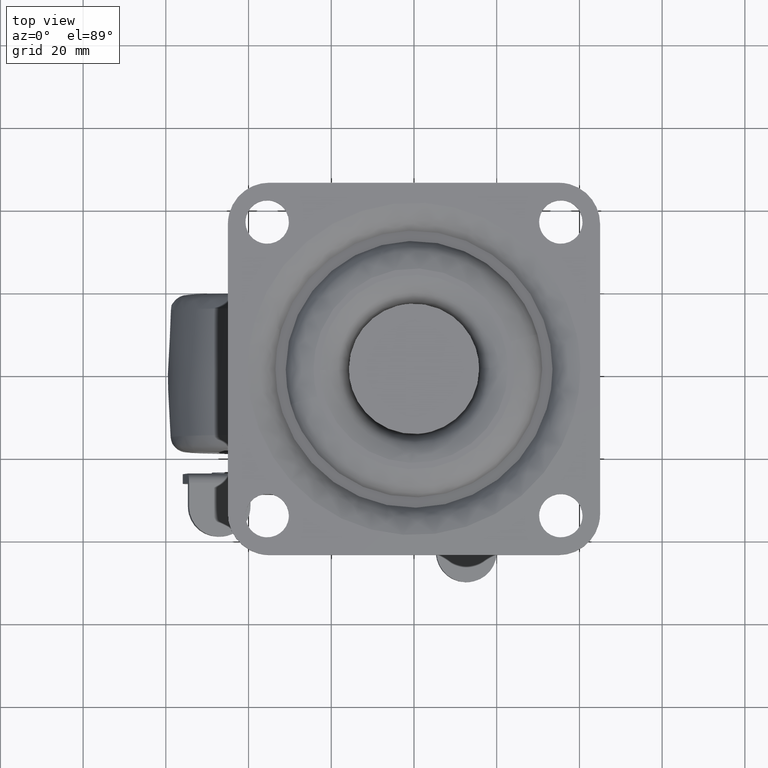
[diagram: clean part render]
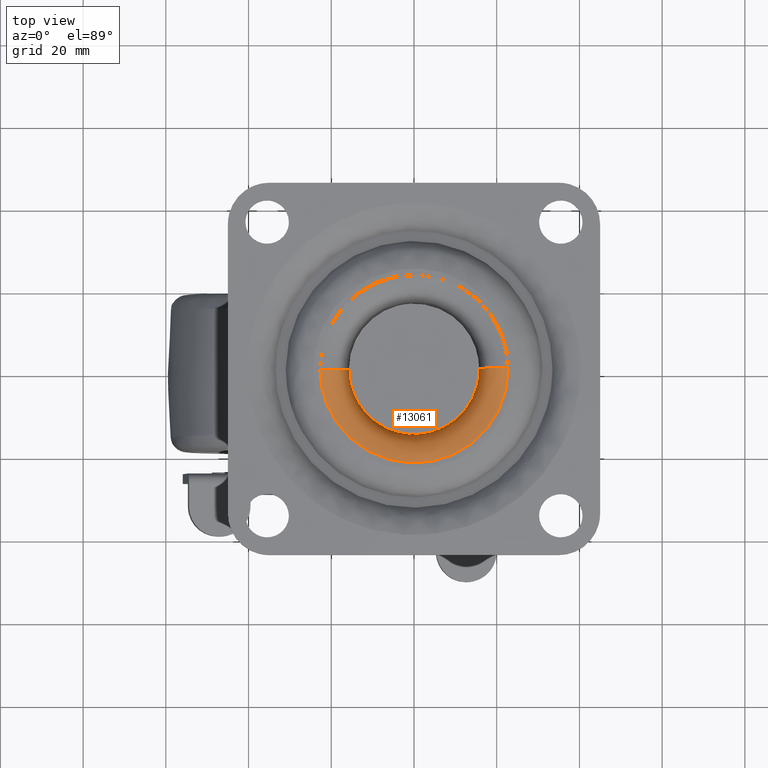
[diagram: same view with one face highlighted and labeled with its STEP entity id]
A machine part, top view. The second image highlights one B-rep face of the part: STEP entity #13061.
In plain terms, the highlighted face is a freeform B-spline surface patch.
Its self-contained STEP definition (entity closure, byte-faithful):
#12864=CARTESIAN_POINT('',(22.750000000000000,0.0,0.0));
#12865=VERTEX_POINT('',#12864);
#12866=CARTESIAN_POINT('',(-22.748203754541908,-0.285877407772717,-1.633897E-015));
#12867=VERTEX_POINT('',#12866);
#12868=CARTESIAN_POINT('',(22.750000000000000,0.0,0.0));
#12869=CARTESIAN_POINT('',(22.750270416747998,-1.575734164672007,-3.458239E-019));
#12870=CARTESIAN_POINT('',(22.479199530850650,-4.170904820728083,-1.066548E-017));
#12871=CARTESIAN_POINT('',(21.482723088850872,-7.702532078662542,-4.724562E-017));
#12872=CARTESIAN_POINT('',(20.346477157180932,-10.298795245712091,-8.863380E-017));
#12873=CARTESIAN_POINT('',(18.911498167755308,-12.738489382054640,-1.407141E-016));
#12874=CARTESIAN_POINT('',(17.453956726108601,-14.664513020805209,-1.934887E-016));
#12875=CARTESIAN_POINT('',(15.636601802409910,-16.585021327774371,-2.591829E-016));
#12876=CARTESIAN_POINT('',(13.799010965172270,-18.151854674885961,-3.255240E-016));
#12877=CARTESIAN_POINT('',(11.446613613463860,-19.726651626004529,-4.103535E-016));
#12878=CARTESIAN_POINT('',(8.958421236068434,-20.983375616975881,-4.999876E-016));
#12879=CARTESIAN_POINT('',(6.328574817070607,-21.902662413918598,-5.946323E-016));
#12880=CARTESIAN_POINT('',(4.020545473658382,-22.426589559131990,-6.776315E-016));
#12881=CARTESIAN_POINT('',(1.214298679167148,-22.789365570482691,-7.784852E-016));
#12882=CARTESIAN_POINT('',(-1.810680542593149,-22.771381257506341,-8.871076E-016));
#12883=CARTESIAN_POINT('',(-4.973201464255172,-22.255115295468340,-1.000557E-015));
#12884=CARTESIAN_POINT('',(-7.738114653728506,-21.457224156025021,-1.099664E-015));
#12885=CARTESIAN_POINT('',(-10.042726807674830,-20.465878250463319,-1.182199E-015));
#12886=CARTESIAN_POINT('',(-12.341918562225681,-19.160865805055849,-1.264468E-015));
#12887=CARTESIAN_POINT('',(-14.760750585859430,-17.433696552933750,-1.350938E-015));
#12888=CARTESIAN_POINT('',(-17.451422371831342,-14.793425168511030,-1.446964E-015));
#12889=CARTESIAN_POINT('',(-19.802548163149151,-11.439954332620530,-1.530636E-015));
#12890=CARTESIAN_POINT('',(-21.328930903685681,-8.148545843134846,-1.584705E-015));
#12891=CARTESIAN_POINT('',(-22.421943358183249,-4.452983039676621,-1.623121E-015));
#12892=CARTESIAN_POINT('',(-22.728124988938148,-1.907843913697960,-1.633542E-015));
#12893=CARTESIAN_POINT('',(-22.748203754541908,-0.285877407772717,-1.633897E-015));
#12894=B_SPLINE_CURVE_WITH_KNOTS('',3,(#12868,#12869,#12870,#12871,#12872,#12873,#12874,#12875,#12876,#12877,#12878,#12879,#12880,#12881,#12882,#12883,#12884,#12885,#12886,#12887,#12888,#12889,#12890,#12891,#12892,#12893),.UNSPECIFIED.,.F.,.U.,(4,1,1,1,1,1,1,1,1,1,1,1,1,1,1,1,1,1,1,1,1,1,1,4),(0.000000140173512,4.727133865024172,7.785886242905598,10.983691535332010,13.208235100820369,16.266991205681141,18.213471860141478,21.133197071198861,23.496794750008011,26.694593296585229,29.475260091006749,31.838869345906229,33.785291909284197,37.956249056737008,40.876022186023690,43.378624595220522,46.576422134374667,48.383858314212603,51.303574749317193,55.474613113340531,59.645659391321637,63.538630670210267,66.319279640690155,71.185458714004653),.UNSPECIFIED.);
#12895=EDGE_CURVE('',#12865,#12867,#12894,.T.);
#12912=CARTESIAN_POINT('',(22.748203754541901,0.285877407772721,-1.633897E-015));
#12913=VERTEX_POINT('',#12912);
#12943=CARTESIAN_POINT('',(22.748203754541898,0.285877407772721,-1.633897E-015));
#12944=CARTESIAN_POINT('',(22.749999999455305,0.142944347028743,-8.169484E-016));
#12945=CARTESIAN_POINT('',(22.750000000000000,0.0,0.0));
#12953=(BOUNDED_CURVE()B_SPLINE_CURVE(2,(#12943,#12944,#12945),.UNSPECIFIED.,.F.,.U.)B_SPLINE_CURVE_WITH_KNOTS((3,3),(0.497784295918326,0.500000000000000),.UNSPECIFIED.)CURVE()GEOMETRIC_REPRESENTATION_ITEM()RATIONAL_B_SPLINE_CURVE((0.994854295636181,0.997404141198321,1.0))REPRESENTATION_ITEM(''));
#12954=EDGE_CURVE('',#12913,#12865,#12953,.T.);
#12959=CARTESIAN_POINT('',(15.765699549901592,0.198128052691167,-7.486759763792726));
#12960=CARTESIAN_POINT('',(15.963827602592762,-15.567571497210434,-7.486759763792727));
#12961=CARTESIAN_POINT('',(0.198128052691168,-15.765699549901592,-7.486759763792726));
#12962=CARTESIAN_POINT('',(-15.567571497210434,-15.963827602592762,-7.486759763792727));
#12963=CARTESIAN_POINT('',(-15.765699549901592,-0.198128052691169,-7.486759763792726));
#12964=CARTESIAN_POINT('',(15.206039294803777,0.191094784287174,0.542760218124275));
#12965=CARTESIAN_POINT('',(15.397134079090954,-15.014944510516601,0.542760218124274));
#12966=CARTESIAN_POINT('',(0.191094784287175,-15.206039294803777,0.542760218124275));
#12967=CARTESIAN_POINT('',(-15.014944510516601,-15.397134079090954,0.542760218124274));
#12968=CARTESIAN_POINT('',(-15.206039294803777,-0.191094784287176,0.542760218124275));
#12969=CARTESIAN_POINT('',(23.234925283797903,0.291994052425816,-0.016944455277657));
#12970=CARTESIAN_POINT('',(23.526919336223710,-22.942931231372082,-0.016944455277657));
#12971=CARTESIAN_POINT('',(0.291994052425818,-23.234925283797903,-0.016944455277657));
#12972=CARTESIAN_POINT('',(-22.942931231372082,-23.526919336223710,-0.016944455277657));
#12973=CARTESIAN_POINT('',(-23.234925283797903,-0.291994052425819,-0.016944455277657));
#12981=(BOUNDED_SURFACE()B_SPLINE_SURFACE(2,2,((#12959,#12964,#12969),(#12960,#12965,#12970),(#12961,#12966,#12971),(#12962,#12967,#12972),(#12963,#12968,#12973)),.UNSPECIFIED.,.F.,.F.,.U.)B_SPLINE_SURFACE_WITH_KNOTS((3,2,3),(3,3),(0.0,38.499924485289263,76.999848970578512),(0.0,12.756617619637810),.UNSPECIFIED.)GEOMETRIC_REPRESENTATION_ITEM()RATIONAL_B_SPLINE_SURFACE(((0.910479795090997,0.597479572841838,0.910479806786608),(0.643806437242182,0.422481857576905,0.643806445512228),(0.910479795090997,0.597479572841838,0.910479806786608),(0.643806437242182,0.422481857576905,0.643806445512228),(0.910479795090997,0.597479572841838,0.910479806786608)))REPRESENTATION_ITEM('')SURFACE());
#12982=CARTESIAN_POINT('',(15.750000000000000,0.0,-7.0));
#12983=VERTEX_POINT('',#12982);
#12984=CARTESIAN_POINT('',(15.748756446210090,0.197915128163612,-6.999999999266153));
#12985=VERTEX_POINT('',#12984);
#12986=CARTESIAN_POINT('',(15.750000000000000,0.0,-7.0));
#12987=CARTESIAN_POINT('',(15.750000000000004,0.098961470872668,-6.999999999633077));
#12988=CARTESIAN_POINT('',(15.748756446210090,0.197915128163612,-6.999999999266153));
#12996=(BOUNDED_CURVE()B_SPLINE_CURVE(2,(#12986,#12987,#12988),.UNSPECIFIED.,.F.,.U.)B_SPLINE_CURVE_WITH_KNOTS((3,3),(0.500000000000000,0.502215704078281),.UNSPECIFIED.)CURVE()GEOMETRIC_REPRESENTATION_ITEM()RATIONAL_B_SPLINE_CURVE((1.0,0.997404141202297,0.994854295643992))REPRESENTATION_ITEM(''));
#12997=EDGE_CURVE('',#12983,#12985,#12996,.T.);
#12998=ORIENTED_EDGE('',*,*,#12997,.F.);
#12999=CARTESIAN_POINT('',(-1.235708689504346,-15.701449743071290,-6.999999999605862));
#13000=VERTEX_POINT('',#12999);
#13001=CARTESIAN_POINT('',(-1.235708689504346,-15.701449743071279,-6.999999999605862));
#13002=CARTESIAN_POINT('',(-0.618808100060724,-15.749999999984770,-6.999999999620156));
#13003=CARTESIAN_POINT('',(1.181138E-012,-15.749999999985080,-6.999999999634496));
#13004=CARTESIAN_POINT('',(15.750000000000563,-15.749999999992825,-6.999999999999484));
#13005=CARTESIAN_POINT('',(15.750000000000000,0.0,-7.0));
#13013=(BOUNDED_CURVE()B_SPLINE_CURVE(2,(#13001,#13002,#13003,#13004,#13005),.UNSPECIFIED.,.F.,.U.)B_SPLINE_CURVE_WITH_KNOTS((3,2,3),(0.236331541568003,0.250000000000000,0.500000000000000),.UNSPECIFIED.)CURVE()GEOMETRIC_REPRESENTATION_ITEM()RATIONAL_B_SPLINE_CURVE((0.969723858985816,0.983986404854538,1.0,0.707106781186547,1.0))REPRESENTATION_ITEM(''));
#13014=EDGE_CURVE('',#13000,#12983,#13013,.T.);
#13015=ORIENTED_EDGE('',*,*,#13014,.F.);
#13016=CARTESIAN_POINT('',(-15.748756446210090,-0.197915128163613,-6.999999999266153));
#13017=VERTEX_POINT('',#13016);
#13018=CARTESIAN_POINT('',(-15.748756446210091,-0.197915128163613,-6.999999999266153));
#13019=CARTESIAN_POINT('',(-15.568098179035131,-14.573486496157299,-6.999999999270193));
#13020=CARTESIAN_POINT('',(-1.235708689504346,-15.701449743071279,-6.999999999605862));
#13028=(BOUNDED_CURVE()B_SPLINE_CURVE(2,(#13018,#13019,#13020),.UNSPECIFIED.,.F.,.U.)B_SPLINE_CURVE_WITH_KNOTS((3,3),(0.002215704078281,0.236331541568003),.UNSPECIFIED.)CURVE()GEOMETRIC_REPRESENTATION_ITEM()RATIONAL_B_SPLINE_CURVE((0.994854295643991,0.725432384025139,0.969723858985816))REPRESENTATION_ITEM(''));
#13029=EDGE_CURVE('',#13017,#13000,#13028,.T.);
#13030=ORIENTED_EDGE('',*,*,#13029,.F.);
#13031=CARTESIAN_POINT('',(-15.748756446210088,-0.197915128163613,-6.999999999266153));
#13032=CARTESIAN_POINT('',(-15.748756446941117,-0.197915128392497,-1.089461E-009));
#13033=CARTESIAN_POINT('',(-22.748203754541908,-0.285877407772718,-1.633897E-015));
#13041=(BOUNDED_CURVE()B_SPLINE_CURVE(2,(#13031,#13032,#13033),.UNSPECIFIED.,.F.,.U.)B_SPLINE_CURVE_WITH_KNOTS((3,3),(-1.725134643174306,-0.274865356877791),.UNSPECIFIED.)CURVE()GEOMETRIC_REPRESENTATION_ITEM()RATIONAL_B_SPLINE_CURVE((0.883342149614701,0.624617224175233,0.883342149596113))REPRESENTATION_ITEM(''));
#13042=EDGE_CURVE('',#13017,#12867,#13041,.T.);
#13043=ORIENTED_EDGE('',*,*,#13042,.T.);
#13044=ORIENTED_EDGE('',*,*,#12895,.F.);
#13045=ORIENTED_EDGE('',*,*,#12954,.F.);
#13046=CARTESIAN_POINT('',(15.748756446210088,0.197915128163612,-6.999999999266153));
#13047=CARTESIAN_POINT('',(15.748756446941119,0.197915128392499,-1.089472E-009));
#13048=CARTESIAN_POINT('',(22.748203754541898,0.285877407772721,-1.633897E-015));
#13056=(BOUNDED_CURVE()B_SPLINE_CURVE(2,(#13046,#13047,#13048),.UNSPECIFIED.,.F.,.U.)B_SPLINE_CURVE_WITH_KNOTS((3,3),(-1.725134643174306,-0.274865356877792),.UNSPECIFIED.)CURVE()GEOMETRIC_REPRESENTATION_ITEM()RATIONAL_B_SPLINE_CURVE((0.883342149614701,0.624617224175233,0.883342149596113))REPRESENTATION_ITEM(''));
#13057=EDGE_CURVE('',#12985,#12913,#13056,.T.);
#13058=ORIENTED_EDGE('',*,*,#13057,.F.);
#13059=EDGE_LOOP('',(#12998,#13015,#13030,#13043,#13044,#13045,#13058));
#13060=FACE_OUTER_BOUND('',#13059,.T.);
#13061=ADVANCED_FACE('',(#13060),#12981,.T.);